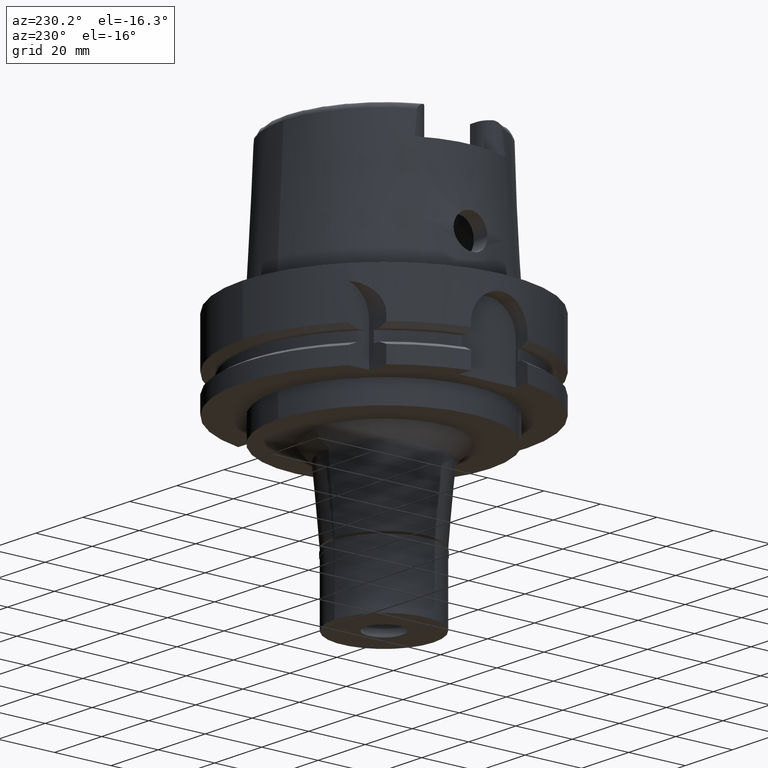
[diagram: clean part render]
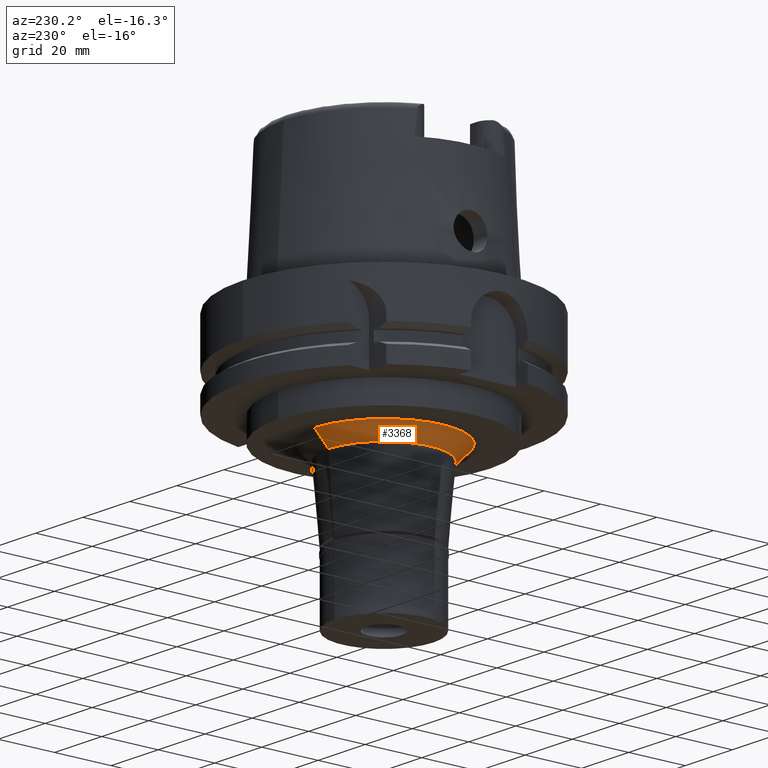
[diagram: same view with one face highlighted and labeled with its STEP entity id]
A machine part, auxiliary view. The second image highlights one B-rep face of the part: STEP entity #3368.
In plain terms, the highlighted conical surface has half-angle 45 deg.
Its self-contained STEP definition (entity closure, byte-faithful):
#294 = DIRECTION ( 'NONE',  ( 0.0000000000000000000, 0.7071067811863974706, -0.7071067811866975639 ) ) ;
#302 = DIRECTION ( 'NONE',  ( 0.0000000000000000000, -1.000000000000000000, 0.0000000000000000000 ) ) ;
#361 = CARTESIAN_POINT ( 'NONE',  ( 0.0000000000000000000, 24.66096998908999893, -37.00000000000000000 ) ) ;
#409 = CIRCLE ( 'NONE', #2479, 19.66096998909000249 ) ;
#498 = AXIS2_PLACEMENT_3D ( 'NONE', #2671, #2029, #4683 ) ;
#533 = AXIS2_PLACEMENT_3D ( 'NONE', #3930, #1796, #939 ) ;
#565 = CARTESIAN_POINT ( 'NONE',  ( 0.0000000000000000000, -24.66096998908999893, -37.00000000000000000 ) ) ;
#800 = CONICAL_SURFACE ( 'NONE', #533, 22.16096998908999893, 0.7853981633972997312 ) ;
#886 = FACE_OUTER_BOUND ( 'NONE', #1218, .T. ) ;
#939 = DIRECTION ( 'NONE',  ( 0.0000000000000000000, 1.000000000000000000, 0.0000000000000000000 ) ) ;
#1218 = EDGE_LOOP ( 'NONE', ( #3995, #5149, #2295, #4795 ) ) ;
#1321 = VECTOR ( 'NONE', #294, 1000.000000000000114 ) ;
#1494 = EDGE_CURVE ( 'NONE', #3964, #5154, #409, .T. ) ;
#1627 = EDGE_CURVE ( 'NONE', #3641, #4039, #5406, .T. ) ;
#1796 = DIRECTION ( 'NONE',  ( 0.0000000000000000000, 0.0000000000000000000, 1.000000000000000000 ) ) ;
#1831 = EDGE_CURVE ( 'NONE', #4039, #5154, #2731, .T. ) ;
#2029 = DIRECTION ( 'NONE',  ( 0.0000000000000000000, 0.0000000000000000000, -1.000000000000000000 ) ) ;
#2295 = ORIENTED_EDGE ( 'NONE', *, *, #1627, .T. ) ;
#2465 = CARTESIAN_POINT ( 'NONE',  ( 0.0000000000000000000, -24.66096998908999893, -37.00000000000000000 ) ) ;
#2479 = AXIS2_PLACEMENT_3D ( 'NONE', #5475, #4194, #302 ) ;
#2671 = CARTESIAN_POINT ( 'NONE',  ( 0.0000000000000000000, 0.0000000000000000000, -37.00000000000000000 ) ) ;
#2731 = LINE ( 'NONE', #3192, #3952 ) ;
#3192 = CARTESIAN_POINT ( 'NONE',  ( 0.0000000000000000000, 24.66096998908999893, -37.00000000000000000 ) ) ;
#3368 = ADVANCED_FACE ( 'NONE', ( #886 ), #800, .T. ) ;
#3412 = LINE ( 'NONE', #2465, #1321 ) ;
#3470 = CARTESIAN_POINT ( 'NONE',  ( 0.0000000000000000000, 19.66096998909000249, -42.00000000000000000 ) ) ;
#3640 = DIRECTION ( 'NONE',  ( 0.0000000000000000000, -0.7071067811863974706, -0.7071067811866975639 ) ) ;
#3641 = VERTEX_POINT ( 'NONE', #565 ) ;
#3930 = CARTESIAN_POINT ( 'NONE',  ( 0.0000000000000000000, 0.0000000000000000000, -39.50000000000000000 ) ) ;
#3952 = VECTOR ( 'NONE', #3640, 1000.000000000000114 ) ;
#3964 = VERTEX_POINT ( 'NONE', #5058 ) ;
#3995 = ORIENTED_EDGE ( 'NONE', *, *, #1494, .F. ) ;
#4039 = VERTEX_POINT ( 'NONE', #361 ) ;
#4194 = DIRECTION ( 'NONE',  ( 0.0000000000000000000, 0.0000000000000000000, -1.000000000000000000 ) ) ;
#4683 = DIRECTION ( 'NONE',  ( 0.0000000000000000000, -1.000000000000000000, 0.0000000000000000000 ) ) ;
#4795 = ORIENTED_EDGE ( 'NONE', *, *, #1831, .T. ) ;
#5058 = CARTESIAN_POINT ( 'NONE',  ( 0.0000000000000000000, -19.66096998909000249, -42.00000000000000000 ) ) ;
#5149 = ORIENTED_EDGE ( 'NONE', *, *, #5376, .F. ) ;
#5154 = VERTEX_POINT ( 'NONE', #3470 ) ;
#5376 = EDGE_CURVE ( 'NONE', #3641, #3964, #3412, .T. ) ;
#5406 = CIRCLE ( 'NONE', #498, 24.66096998908999893 ) ;
#5475 = CARTESIAN_POINT ( 'NONE',  ( 0.0000000000000000000, 0.0000000000000000000, -42.00000000000000000 ) ) ;